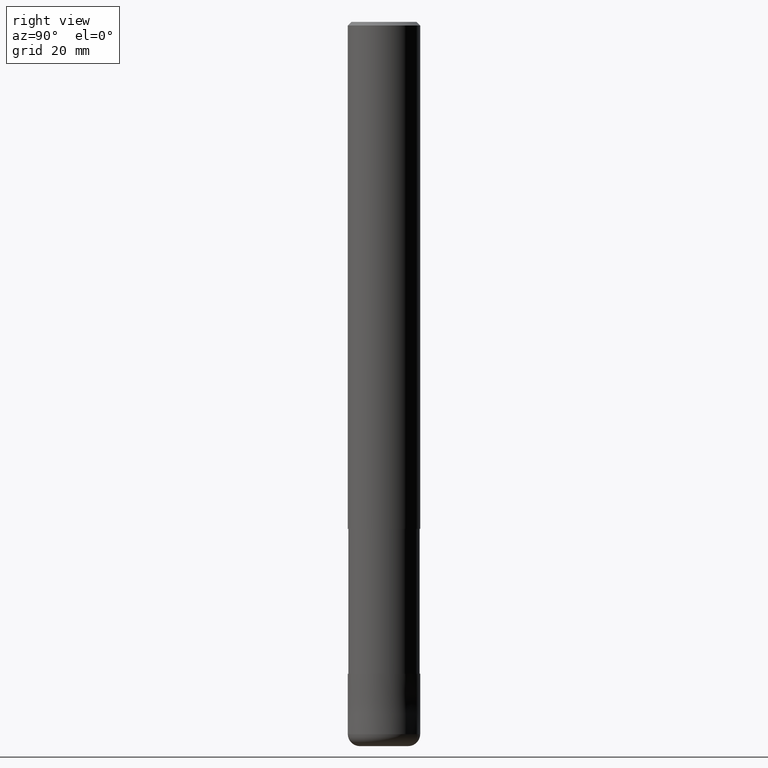
[diagram: clean part render]
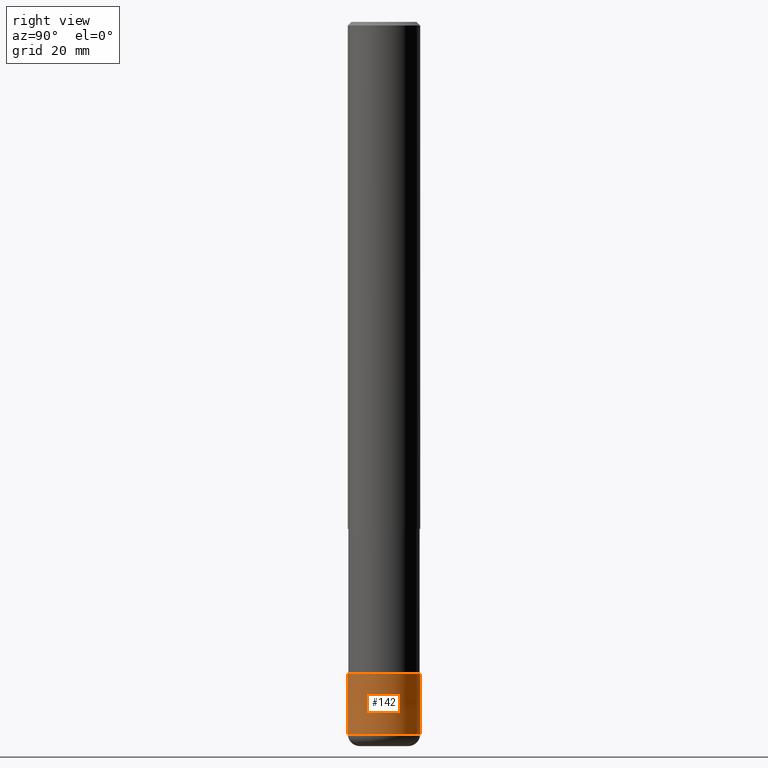
[diagram: same view with one face highlighted and labeled with its STEP entity id]
A machine part, right view. The second image highlights one B-rep face of the part: STEP entity #142.
In plain terms, the highlighted conical surface has half-angle 0.001 deg.
Its self-contained STEP definition (entity closure, byte-faithful):
#116=EDGE_CURVE('',#154,#126,#259,.T.);
#126=VERTEX_POINT('',#270);
#128=VERTEX_POINT('',#272);
#142=ADVANCED_FACE('',(#287),#288,.T.);
#146=EDGE_CURVE('',#154,#206,#292,.T.);
#154=VERTEX_POINT('',#300);
#164=EDGE_CURVE('',#128,#126,#310,.T.);
#186=EDGE_CURVE('',#206,#128,#335,.T.);
#206=VERTEX_POINT('',#359);
#259=CIRCLE('',#411,5.9999);
#270=CARTESIAN_POINT('',(7.34751566229888E-016,-5.9999,-108.0));
#272=CARTESIAN_POINT('',(7.34763812293427E-016,-6.0,-118.0));
#287=FACE_OUTER_BOUND('',#446,.T.);
#288=CONICAL_SURFACE('',#447,5.99995,9.99999999964336E-006);
#292=LINE('',#452,#453);
#300=CARTESIAN_POINT('',(0.0,5.9999,-108.0));
#310=LINE('',#478,#479);
#335=CIRCLE('',#509,6.0);
#359=CARTESIAN_POINT('',(0.0,6.0,-118.0));
#411=AXIS2_PLACEMENT_3D('',#597,#598,#599);
#446=EDGE_LOOP('',(#630,#631,#632,#633));
#447=AXIS2_PLACEMENT_3D('',#634,#635,#636);
#452=CARTESIAN_POINT('',(-7.34757689261657E-016,5.99995,-113.0));
#453=VECTOR('',#637,1.0);
#478=CARTESIAN_POINT('',(7.34757689261657E-016,-5.99995,-113.0));
#479=VECTOR('',#651,1.0);
#509=AXIS2_PLACEMENT_3D('',#679,#680,#681);
#597=CARTESIAN_POINT('',(0.0,0.0,-108.0));
#598=DIRECTION('',(0.0,0.0,-1.0));
#599=DIRECTION('',(0.0,1.0,0.0));
#630=ORIENTED_EDGE('',*,*,#146,.F.);
#631=ORIENTED_EDGE('',*,*,#116,.T.);
#632=ORIENTED_EDGE('',*,*,#164,.F.);
#633=ORIENTED_EDGE('',*,*,#186,.F.);
#634=CARTESIAN_POINT('',(0.0,0.0,-113.0));
#635=DIRECTION('',(0.0,-0.0,-1.0));
#636=DIRECTION('',(0.0,1.0,0.0));
#637=DIRECTION('',(-1.22460635375829E-021,9.99999999947669E-006,-0.99999999995));
#651=DIRECTION('',(-1.22460635375829E-021,9.99999999947669E-006,0.99999999995));
#679=CARTESIAN_POINT('',(0.0,0.0,-118.0));
#680=DIRECTION('',(0.0,0.0,-1.0));
#681=DIRECTION('',(0.0,1.0,0.0));